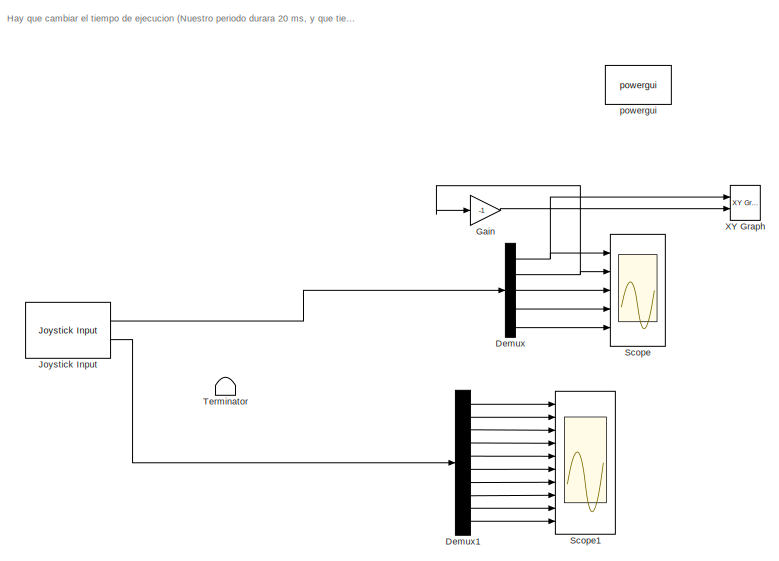
[diagram: root canvas - part 1/3, top left region]
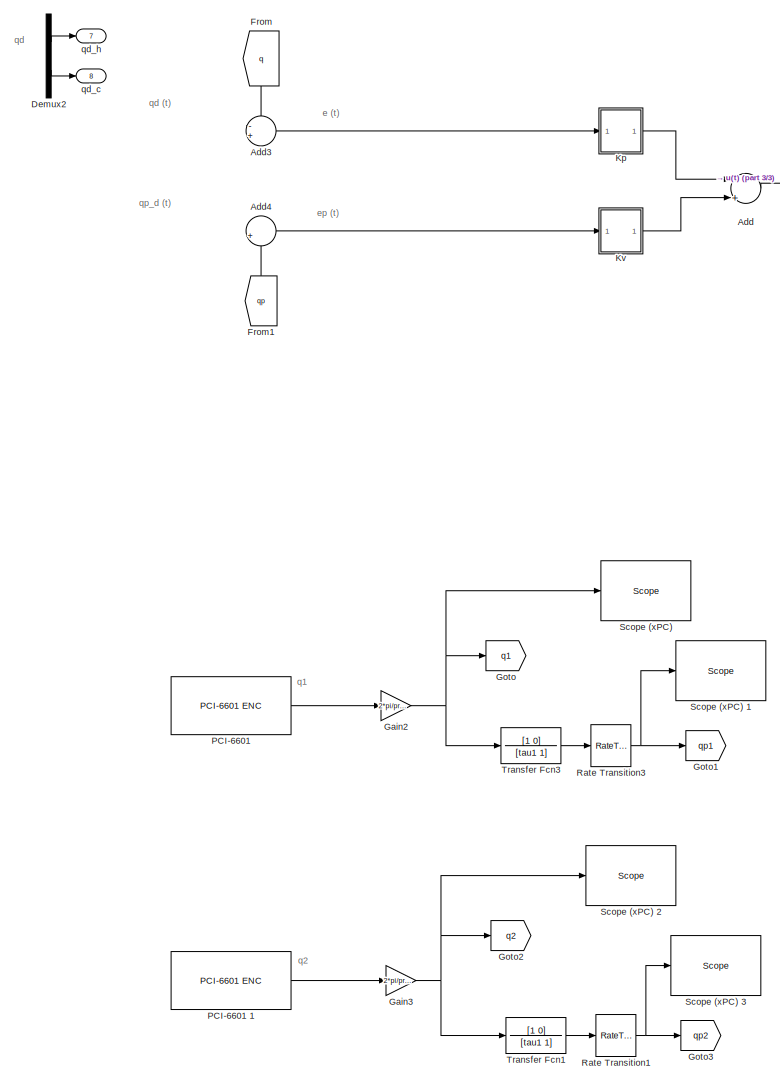
[diagram: root canvas - part 2/3, bottom left region]
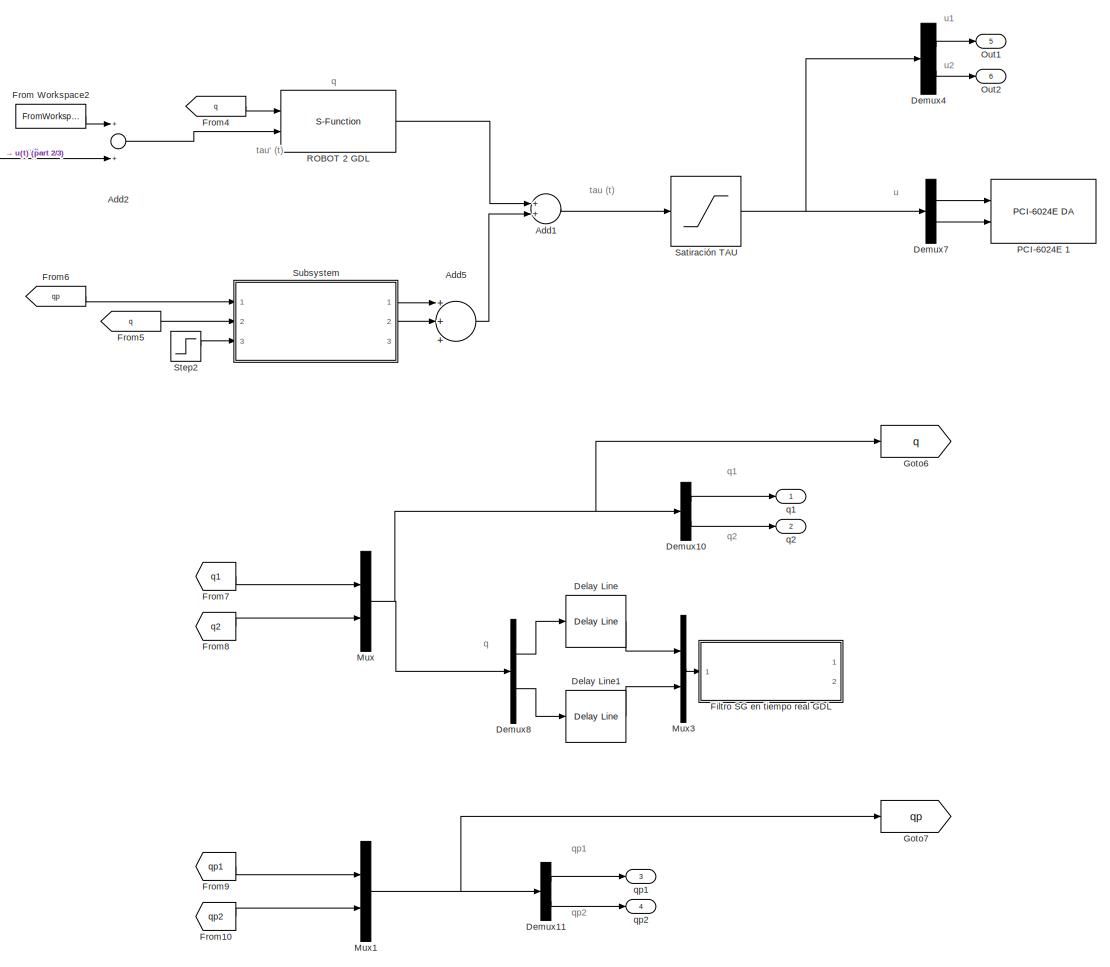
[diagram: root canvas - part 3/3, bottom right region]
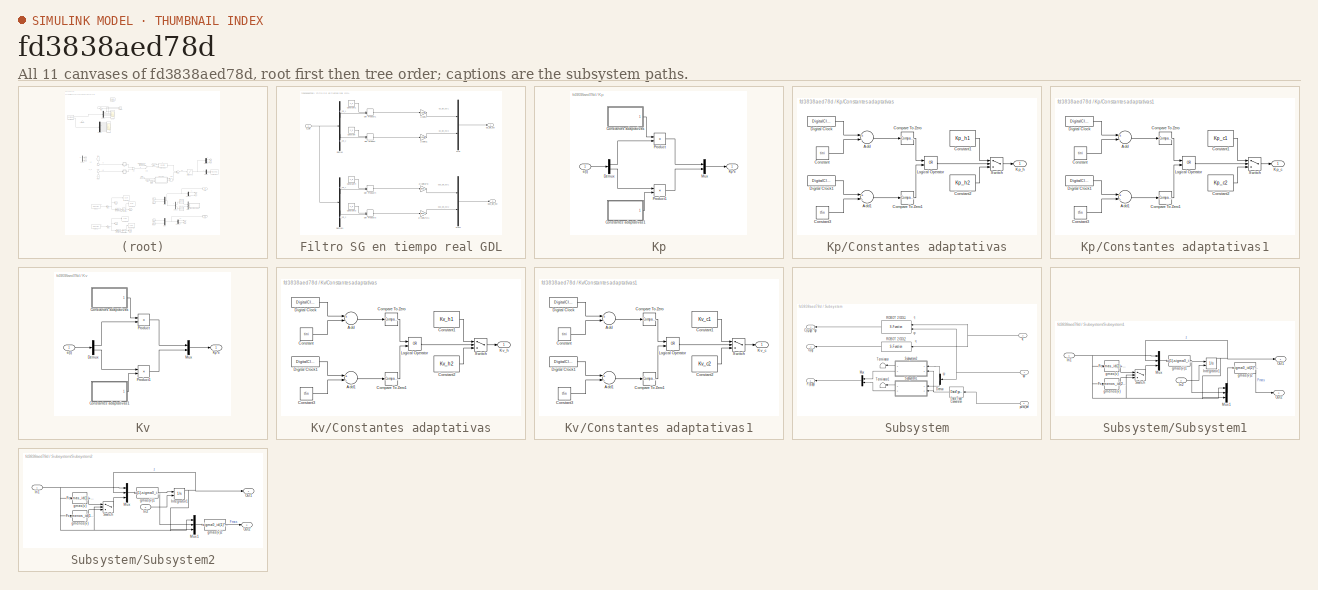
[diagram: thumbnail index - all 11 canvases of the model, root first then tree order]
MODEL slx_fd3838aed78d
KIND model
CONFIG AbsTol = auto
CONFIG EnableMultiTasking = on
CONFIG FixedStep = 0.001
CONFIG MaxStep = 1e-4
CONFIG MinStep = auto
CONFIG RelTol = 1e-3
CONFIG SampleTimeConstraint = Unconstrained
CONFIG Solver = FixedStepDiscrete
CONFIG SolverName = FixedStepDiscrete
CONFIG StartTime = 0.0
CONFIG StopTime = inf
BLOCK [Sum] Add
  InputSameDT = off
  OutDataTypeStr = Inherit: Inherit via internal rule
  Ports = [2, 1]
  SaturateOnIntegerOverflow = off
BLOCK [Sum] Add1
  InputSameDT = off
  OutDataTypeStr = Inherit: Inherit via internal rule
  Ports = [2, 1]
  SaturateOnIntegerOverflow = off
BLOCK [Sum] Add2
  InputSameDT = off
  OutDataTypeStr = Inherit: Inherit via internal rule
  Ports = [2, 1]
  SaturateOnIntegerOverflow = off
BLOCK [Sum] Add3
  IconShape = round
  InputSameDT = off
  Inputs = -+|
  OutDataTypeStr = Inherit: Inherit via internal rule
  Ports = [2, 1]
  SaturateOnIntegerOverflow = off
BLOCK [Sum] Add4
  Commented = on
  IconShape = round
  InputSameDT = off
  Inputs = |+-
  OutDataTypeStr = Inherit: Inherit via internal rule
  Ports = [2, 1]
  SaturateOnIntegerOverflow = off
BLOCK [Sum] Add5
  InputSameDT = off
  Inputs = +++
  OutDataTypeStr = Inherit: Inherit via internal rule
  Ports = [3, 1]
  SaturateOnIntegerOverflow = off
BLOCK [Reference] Delay Line  REF=dspbuff3/Delay Line
  Ports = [1, 1]
  SourceBlock = dspbuff3/Delay Line
  SourceProductBaseCode = DS
  SourceProductName = DSP System Toolbox
  SourceType = Delay Line
BLOCK [Reference] Delay Line1  REF=dspbuff3/Delay Line
  Ports = [1, 1]
  SourceBlock = dspbuff3/Delay Line
  SourceProductBaseCode = DS
  SourceProductName = DSP System Toolbox
  SourceType = Delay Line
BLOCK [Demux] Demux
  DisplayOption = bar
  Outputs = 5
  Ports = [1, 5]
BLOCK [Demux] Demux1
  DisplayOption = bar
  Outputs = 10
  Ports = [1, 10]
BLOCK [Demux] Demux10
  DisplayOption = bar
  Outputs = 2
  Ports = [1, 2]
BLOCK [Demux] Demux11
  DisplayOption = bar
  Outputs = 2
  Ports = [1, 2]
BLOCK [Demux] Demux2
  DisplayOption = bar
  Outputs = 2
  Ports = [1, 2]
BLOCK [Demux] Demux4
  DisplayOption = bar
  Outputs = 2
  Ports = [1, 2]
BLOCK [Demux] Demux7
  DisplayOption = bar
  Outputs = 2
  Ports = [1, 2]
BLOCK [Demux] Demux8
  DisplayOption = bar
  Outputs = 2
  Ports = [1, 2]
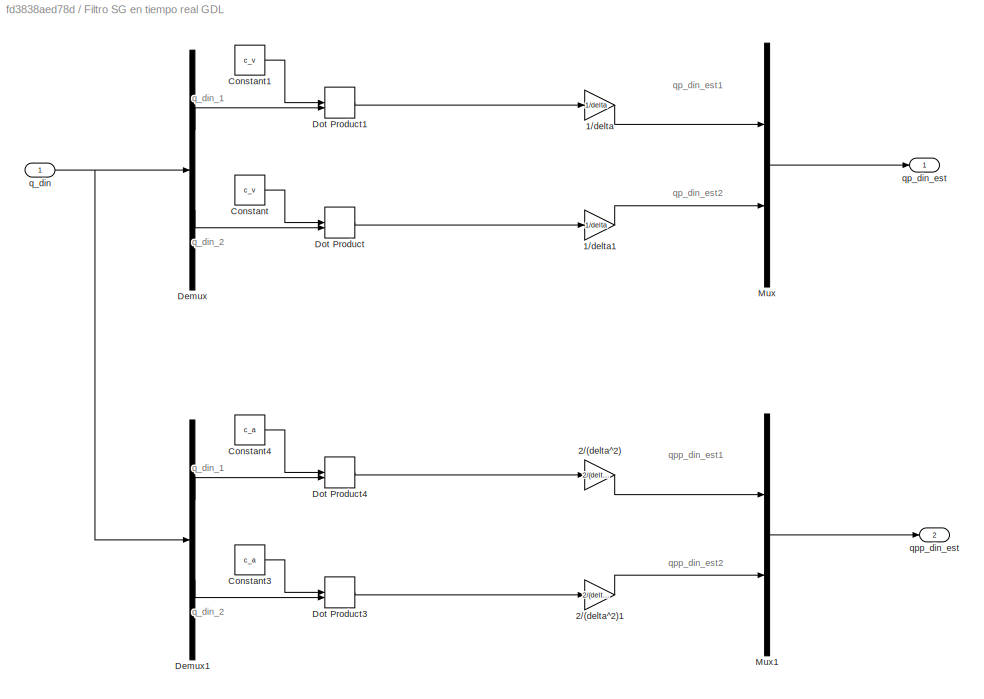
BLOCK [SubSystem] Filtro SG en tiempo real GDL
  Ports = [1, 2]
  RequestExecContextInheritance = off
  Variant = off
BLOCK [Gain] Filtro SG en tiempo real GDL/1//delta
  Gain = 1/delta
  OutDataTypeStr = Inherit: Inherit via internal rule
  ParamDataTypeStr = Inherit: Inherit via internal rule
  SampleTime = 0.001
  SaturateOnIntegerOverflow = off
BLOCK [Gain] Filtro SG en tiempo real GDL/1//delta1
  Gain = 1/delta
  OutDataTypeStr = Inherit: Inherit via internal rule
  ParamDataTypeStr = Inherit: Inherit via internal rule
  SampleTime = 0.001
  SaturateOnIntegerOverflow = off
BLOCK [Gain] Filtro SG en tiempo real GDL/2//(delta^2)
  Gain = 2/(delta*delta)
  OutDataTypeStr = Inherit: Inherit via internal rule
  ParamDataTypeStr = Inherit: Inherit via internal rule
  SampleTime = 0.001
  SaturateOnIntegerOverflow = off
BLOCK [Gain] Filtro SG en tiempo real GDL/2//(delta^2)1
  Gain = 2/(delta*delta)
  OutDataTypeStr = Inherit: Inherit via internal rule
  ParamDataTypeStr = Inherit: Inherit via internal rule
  SampleTime = 0.001
  SaturateOnIntegerOverflow = off
BLOCK [Constant] Filtro SG en tiempo real GDL/Constant
  SampleTime = 0.001
  Value = c_v
BLOCK [Constant] Filtro SG en tiempo real GDL/Constant1
  SampleTime = 0.001
  Value = c_v
BLOCK [Constant] Filtro SG en tiempo real GDL/Constant3
  SampleTime = 0.001
  Value = c_a
  VectorParams1D = off
BLOCK [Constant] Filtro SG en tiempo real GDL/Constant4
  SampleTime = 0.001
  Value = c_a
BLOCK [Demux] Filtro SG en tiempo real GDL/Demux
  DisplayOption = bar
  Outputs = 2
  Ports = [1, 2]
BLOCK [Demux] Filtro SG en tiempo real GDL/Demux1
  DisplayOption = bar
  Outputs = 2
  Ports = [1, 2]
BLOCK [DotProduct] Filtro SG en tiempo real GDL/Dot Product
  OutDataTypeStr = Inherit: Inherit via internal rule
BLOCK [DotProduct] Filtro SG en tiempo real GDL/Dot Product1
  OutDataTypeStr = Inherit: Inherit via internal rule
BLOCK [DotProduct] Filtro SG en tiempo real GDL/Dot Product3
  OutDataTypeStr = Inherit: Inherit via internal rule
BLOCK [DotProduct] Filtro SG en tiempo real GDL/Dot Product4
  OutDataTypeStr = Inherit: Inherit via internal rule
BLOCK [Mux] Filtro SG en tiempo real GDL/Mux
  DisplayOption = bar
  Inputs = 2
  Ports = [2, 1]
BLOCK [Mux] Filtro SG en tiempo real GDL/Mux1
  DisplayOption = bar
  Inputs = 2
  Ports = [2, 1]
BLOCK [Inport] Filtro SG en tiempo real GDL/q_din
  IconDisplay = Port number
  SampleTime = 0.001
BLOCK [Outport] Filtro SG en tiempo real GDL/qp_din_est
  IconDisplay = Port number
  SampleTime = 0.001
BLOCK [Outport] Filtro SG en tiempo real GDL/qpp_din_est
  IconDisplay = Port number
  Port = 2
  SampleTime = 0.001
BLOCK [From] From
  CloseFcn = tagdialog Close
  GotoTag = q
BLOCK [FromWorkspace] From Workspace2
  SampleTime = 0
  VariableName = [Td, qpp_d]
  ZeroCross = on
BLOCK [From] From1
  CloseFcn = tagdialog Close
  Commented = on
  GotoTag = qp
BLOCK [From] From10
  CloseFcn = tagdialog Close
  GotoTag = qp2
BLOCK [From] From4
  CloseFcn = tagdialog Close
  GotoTag = q
BLOCK [From] From5
  CloseFcn = tagdialog Close
  GotoTag = q
BLOCK [From] From6
  CloseFcn = tagdialog Close
  GotoTag = qp
BLOCK [From] From7
  CloseFcn = tagdialog Close
  GotoTag = q1
BLOCK [From] From8
  CloseFcn = tagdialog Close
  GotoTag = q2
BLOCK [From] From9
  CloseFcn = tagdialog Close
  GotoTag = qp1
BLOCK [Gain] Gain
  Gain = -1
  OutDataTypeStr = Inherit: Inherit via internal rule
  ParamDataTypeStr = Inherit: Inherit via internal rule
  SaturateOnIntegerOverflow = off
BLOCK [Gain] Gain2
  Gain = 2*pi/precision
  OutDataTypeStr = Inherit: Inherit via internal rule
  ParamDataTypeStr = Inherit: Inherit via internal rule
  SaturateOnIntegerOverflow = off
BLOCK [Gain] Gain3
  Gain = 2*pi/precision
  OutDataTypeStr = Inherit: Inherit via internal rule
  ParamDataTypeStr = Inherit: Inherit via internal rule
  SaturateOnIntegerOverflow = off
BLOCK [Goto] Goto
  GotoTag = q1
BLOCK [Goto] Goto1
  GotoTag = qp1
BLOCK [Goto] Goto2
  GotoTag = q2
BLOCK [Goto] Goto3
  GotoTag = qp2
BLOCK [Goto] Goto6
  GotoTag = q
BLOCK [Goto] Goto7
  GotoTag = qp
BLOCK [Reference] Joystick Input  REF=vrlib/Joystick Input
  Ports = [0, 2]
  SourceBlock = vrlib/Joystick Input
  SourceProductBaseCode = VR
  SourceProductName = Simulink 3D Animation
  SourceType = Joystick Input
BLOCK [SubSystem] Kp
  Ports = [1, 1]
  RequestExecContextInheritance = off
  Variant = off
BLOCK [SubSystem] Kp/Constantes adaptativas
  Ports = [0, 1]
  RequestExecContextInheritance = off
  Variant = off
BLOCK [Sum] Kp/Constantes adaptativas/Add
  InputSameDT = off
  Inputs = +-
  OutDataTypeStr = Inherit: Inherit via internal rule
  Ports = [2, 1]
  SaturateOnIntegerOverflow = off
BLOCK [Sum] Kp/Constantes adaptativas/Add1
  InputSameDT = off
  Inputs = +-
  OutDataTypeStr = Inherit: Inherit via internal rule
  Ports = [2, 1]
  SaturateOnIntegerOverflow = off
BLOCK [Reference] Kp/Constantes adaptativas/Compare To Zero  REF=simulink/Logic and Bit
Operations/Compare
To Zero
  Ports = [1, 1]
  SourceBlock = simulink/Logic and Bit\nOperations/Compare\nTo Zero
  SourceProductBaseCode = SL
  SourceProductName = Simulink
  SourceType = Compare To Zero
BLOCK [Reference] Kp/Constantes adaptativas/Compare To Zero1  REF=simulink/Logic and Bit
Operations/Compare
To Zero
  Ports = [1, 1]
  SourceBlock = simulink/Logic and Bit\nOperations/Compare\nTo Zero
  SourceProductBaseCode = SL
  SourceProductName = Simulink
  SourceType = Compare To Zero
BLOCK [Constant] Kp/Constantes adaptativas/Constant
  Value = tini
BLOCK [Constant] Kp/Constantes adaptativas/Constant1
  Value = Kp_h1
BLOCK [Constant] Kp/Constantes adaptativas/Constant2
  Value = Kp_h2
BLOCK [Constant] Kp/Constantes adaptativas/Constant3
  Value = tfin
BLOCK [DigitalClock] Kp/Constantes adaptativas/Digital Clock
  SampleTime = 0.001
BLOCK [DigitalClock] Kp/Constantes adaptativas/Digital Clock1
  SampleTime = 0.001
BLOCK [Outport] Kp/Constantes adaptativas/Kp_h
  IconDisplay = Port number
BLOCK [Logic] Kp/Constantes adaptativas/Logical Operator
  AllPortsSameDT = off
  Operator = OR
  OutDataTypeStr = boolean
  Ports = [2, 1]
BLOCK [Switch] Kp/Constantes adaptativas/Switch
  Criteria = u2 ~= 0
  InputSameDT = off
  SaturateOnIntegerOverflow = off
BLOCK [SubSystem] Kp/Constantes adaptativas1
  Ports = [0, 1]
  RequestExecContextInheritance = off
  Variant = off
BLOCK [Sum] Kp/Constantes adaptativas1/Add
  InputSameDT = off
  Inputs = +-
  OutDataTypeStr = Inherit: Inherit via internal rule
  Ports = [2, 1]
  SaturateOnIntegerOverflow = off
BLOCK [Sum] Kp/Constantes adaptativas1/Add1
  InputSameDT = off
  Inputs = +-
  OutDataTypeStr = Inherit: Inherit via internal rule
  Ports = [2, 1]
  SaturateOnIntegerOverflow = off
BLOCK [Reference] Kp/Constantes adaptativas1/Compare To Zero  REF=simulink/Logic and Bit
Operations/Compare
To Zero
  Ports = [1, 1]
  SourceBlock = simulink/Logic and Bit\nOperations/Compare\nTo Zero
  SourceProductBaseCode = SL
  SourceProductName = Simulink
  SourceType = Compare To Zero
BLOCK [Reference] Kp/Constantes adaptativas1/Compare To Zero1  REF=simulink/Logic and Bit
Operations/Compare
To Zero
  Ports = [1, 1]
  SourceBlock = simulink/Logic and Bit\nOperations/Compare\nTo Zero
  SourceProductBaseCode = SL
  SourceProductName = Simulink
  SourceType = Compare To Zero
BLOCK [Constant] Kp/Constantes adaptativas1/Constant
  Value = tini
BLOCK [Constant] Kp/Constantes adaptativas1/Constant1
  Value = Kp_c1
BLOCK [Constant] Kp/Constantes adaptativas1/Constant2
  Value = Kp_c2
BLOCK [Constant] Kp/Constantes adaptativas1/Constant3
  Value = tfin
BLOCK [DigitalClock] Kp/Constantes adaptativas1/Digital Clock
  SampleTime = 0.001
BLOCK [DigitalClock] Kp/Constantes adaptativas1/Digital Clock1
  SampleTime = 0.001
BLOCK [Outport] Kp/Constantes adaptativas1/Kp_c
  IconDisplay = Port number
BLOCK [Logic] Kp/Constantes adaptativas1/Logical Operator
  AllPortsSameDT = off
  Operator = OR
  OutDataTypeStr = boolean
  Ports = [2, 1]
BLOCK [Switch] Kp/Constantes adaptativas1/Switch
  Criteria = u2 ~= 0
  InputSameDT = off
  SaturateOnIntegerOverflow = off
BLOCK [Demux] Kp/Demux
  DisplayOption = bar
  Outputs = 2
  Ports = [1, 2]
BLOCK [Outport] Kp/Kp*e
  IconDisplay = Port number
BLOCK [Mux] Kp/Mux
  DisplayOption = bar
  Inputs = 2
  Ports = [2, 1]
BLOCK [Product] Kp/Product
  InputSameDT = off
  OutDataTypeStr = Inherit: Inherit via internal rule
  Ports = [2, 1]
  SaturateOnIntegerOverflow = off
BLOCK [Product] Kp/Product1
  InputSameDT = off
  OutDataTypeStr = Inherit: Inherit via internal rule
  Ports = [2, 1]
  SaturateOnIntegerOverflow = off
BLOCK [Inport] Kp/e(t)
  IconDisplay = Port number
BLOCK [SubSystem] Kv
  Ports = [1, 1]
  RequestExecContextInheritance = off
  Variant = off
BLOCK [SubSystem] Kv/Constantes adaptativas
  Ports = [0, 1]
  RequestExecContextInheritance = off
  Variant = off
BLOCK [Sum] Kv/Constantes adaptativas/Add
  InputSameDT = off
  Inputs = +-
  OutDataTypeStr = Inherit: Inherit via internal rule
  Ports = [2, 1]
  SaturateOnIntegerOverflow = off
BLOCK [Sum] Kv/Constantes adaptativas/Add1
  InputSameDT = off
  Inputs = +-
  OutDataTypeStr = Inherit: Inherit via internal rule
  Ports = [2, 1]
  SaturateOnIntegerOverflow = off
BLOCK [Reference] Kv/Constantes adaptativas/Compare To Zero  REF=simulink/Logic and Bit
Operations/Compare
To Zero
  Ports = [1, 1]
  SourceBlock = simulink/Logic and Bit\nOperations/Compare\nTo Zero
  SourceProductBaseCode = SL
  SourceProductName = Simulink
  SourceType = Compare To Zero
BLOCK [Reference] Kv/Constantes adaptativas/Compare To Zero1  REF=simulink/Logic and Bit
Operations/Compare
To Zero
  Ports = [1, 1]
  SourceBlock = simulink/Logic and Bit\nOperations/Compare\nTo Zero
  SourceProductBaseCode = SL
  SourceProductName = Simulink
  SourceType = Compare To Zero
BLOCK [Constant] Kv/Constantes adaptativas/Constant
  Value = tini
BLOCK [Constant] Kv/Constantes adaptativas/Constant1
  Value = Kv_h1
BLOCK [Constant] Kv/Constantes adaptativas/Constant2
  Value = Kv_h2
BLOCK [Constant] Kv/Constantes adaptativas/Constant3
  Value = tfin
BLOCK [DigitalClock] Kv/Constantes adaptativas/Digital Clock
  SampleTime = 0.001
BLOCK [DigitalClock] Kv/Constantes adaptativas/Digital Clock1
  SampleTime = 0.001
BLOCK [Outport] Kv/Constantes adaptativas/Kv_h
  IconDisplay = Port number
BLOCK [Logic] Kv/Constantes adaptativas/Logical Operator
  AllPortsSameDT = off
  Operator = OR
  OutDataTypeStr = boolean
  Ports = [2, 1]
BLOCK [Switch] Kv/Constantes adaptativas/Switch
  Criteria = u2 ~= 0
  InputSameDT = off
  SaturateOnIntegerOverflow = off
BLOCK [SubSystem] Kv/Constantes adaptativas1
  Ports = [0, 1]
  RequestExecContextInheritance = off
  Variant = off
BLOCK [Sum] Kv/Constantes adaptativas1/Add
  InputSameDT = off
  Inputs = +-
  OutDataTypeStr = Inherit: Inherit via internal rule
  Ports = [2, 1]
  SaturateOnIntegerOverflow = off
BLOCK [Sum] Kv/Constantes adaptativas1/Add1
  InputSameDT = off
  Inputs = +-
  OutDataTypeStr = Inherit: Inherit via internal rule
  Ports = [2, 1]
  SaturateOnIntegerOverflow = off
BLOCK [Reference] Kv/Constantes adaptativas1/Compare To Zero  REF=simulink/Logic and Bit
Operations/Compare
To Zero
  Ports = [1, 1]
  SourceBlock = simulink/Logic and Bit\nOperations/Compare\nTo Zero
  SourceProductBaseCode = SL
  SourceProductName = Simulink
  SourceType = Compare To Zero
BLOCK [Reference] Kv/Constantes adaptativas1/Compare To Zero1  REF=simulink/Logic and Bit
Operations/Compare
To Zero
  Ports = [1, 1]
  SourceBlock = simulink/Logic and Bit\nOperations/Compare\nTo Zero
  SourceProductBaseCode = SL
  SourceProductName = Simulink
  SourceType = Compare To Zero
BLOCK [Constant] Kv/Constantes adaptativas1/Constant
  Value = tini
BLOCK [Constant] Kv/Constantes adaptativas1/Constant1
  Value = Kv_c1
BLOCK [Constant] Kv/Constantes adaptativas1/Constant2
  Value = Kv_c2
BLOCK [Constant] Kv/Constantes adaptativas1/Constant3
  Value = tfin
BLOCK [DigitalClock] Kv/Constantes adaptativas1/Digital Clock
  SampleTime = 0.001
BLOCK [DigitalClock] Kv/Constantes adaptativas1/Digital Clock1
  SampleTime = 0.001
BLOCK [Outport] Kv/Constantes adaptativas1/Kv_c
  IconDisplay = Port number
BLOCK [Logic] Kv/Constantes adaptativas1/Logical Operator
  AllPortsSameDT = off
  Operator = OR
  OutDataTypeStr = boolean
  Ports = [2, 1]
BLOCK [Switch] Kv/Constantes adaptativas1/Switch
  Criteria = u2 ~= 0
  InputSameDT = off
  SaturateOnIntegerOverflow = off
BLOCK [Demux] Kv/Demux
  DisplayOption = bar
  Outputs = 2
  Ports = [1, 2]
BLOCK [Outport] Kv/Kp*e
  IconDisplay = Port number
BLOCK [Mux] Kv/Mux
  DisplayOption = bar
  Inputs = 2
  Ports = [2, 1]
BLOCK [Product] Kv/Product
  InputSameDT = off
  OutDataTypeStr = Inherit: Inherit via internal rule
  Ports = [2, 1]
  SaturateOnIntegerOverflow = off
BLOCK [Product] Kv/Product1
  InputSameDT = off
  OutDataTypeStr = Inherit: Inherit via internal rule
  Ports = [2, 1]
  SaturateOnIntegerOverflow = off
BLOCK [Inport] Kv/e(t)
  IconDisplay = Port number
BLOCK [Mux] Mux
  DisplayOption = bar
  Inputs = 2
  Ports = [2, 1]
BLOCK [Mux] Mux1
  DisplayOption = bar
  Inputs = 2
  Ports = [2, 1]
BLOCK [Mux] Mux3
  DisplayOption = bar
  Inputs = 2
  Ports = [2, 1]
BLOCK [Outport] Out1
  IconDisplay = Port number
  Port = 5
BLOCK [Outport] Out2
  IconDisplay = Port number
  Port = 6
BLOCK [Reference] PCI-6024E 1  REF=xpcnilib/D//A/E Series/PCI-6024E DA
  Ports = [2]
  SourceBlock = xpcnilib/D//A/E Series/PCI-6024E DA
  SourceProductBaseCode = XP
  SourceProductName = Simulink Real-Time
  SourceType = danipci6024e
BLOCK [Reference] PCI-6601   REF=xpcnilib/Incremental
Encoder/PCI-6601 ENC
  Ports = [0, 1]
  SourceBlock = xpcnilib/Incremental\nEncoder/PCI-6601 ENC
  SourceProductBaseCode = XP
  SourceProductName = Simulink Real-Time
  SourceType = encnipci6601
BLOCK [Reference] PCI-6601 1  REF=xpcnilib/Incremental
Encoder/PCI-6601 ENC
  Ports = [0, 1]
  SourceBlock = xpcnilib/Incremental\nEncoder/PCI-6601 ENC
  SourceProductBaseCode = XP
  SourceProductName = Simulink Real-Time
  SourceType = encnipci6601
BLOCK [S-Function] ROBOT 2 GDL
  EnableBusSupport = off
  FunctionName = r2gdl_M_param
  Parameters = k_id
  Ports = [2, 1]
  SFcnIsStateOwnerBlock = off
  SFunctionDeploymentMode = off
BLOCK [RateTransition] Rate Transition1
  OutPortSampleTime = 0.001
BLOCK [RateTransition] Rate Transition3
  OutPortSampleTime = 0.001
BLOCK [Saturate] Satiración TAU
  InputPortMap = u0
  LowerLimit = -10
  Ports = [1, 1]
  SampleTime = 0.001
  UpperLimit = 10
BLOCK [Scope] Scope
  NumInputPorts = 5
  Ports = [5]
  ScopeSpecificationString = Simulink.scopes.TimeScopeBlockCfg('CurrentConfiguration', extmgr.ConfigurationSet(extmgr.Configuration('Core','General UI',true,'DisplayFullSourceName',true),extmgr.Configuration('Core','Source UI',true),extmgr.Configuration('Sources','WiredSimulink',true,'SampleTime','0.001'),extmgr.Configuration('Visuals','Time Domain',true,'SerializedDisplays',{struct('MinYLimReal','-1.00000','MaxYLimReal','1.0...<+1444ch>
BLOCK [Reference] Scope (xPC)   REF=slrtlib/Displays and
Logging/Scope 
  Ports = [1]
  SourceBlock = slrtlib/Displays and\nLogging/Scope
  SourceProductBaseCode = XP
  SourceProductName = Simulink Real-Time
  SourceType = xpcscopeblock
BLOCK [Reference] Scope (xPC) 1  REF=slrtlib/Displays and
Logging/Scope 
  Ports = [1]
  SourceBlock = slrtlib/Displays and\nLogging/Scope
  SourceProductBaseCode = XP
  SourceProductName = Simulink Real-Time
  SourceType = xpcscopeblock
BLOCK [Reference] Scope (xPC) 2  REF=slrtlib/Displays and
Logging/Scope 
  Ports = [1]
  SourceBlock = slrtlib/Displays and\nLogging/Scope
  SourceProductBaseCode = XP
  SourceProductName = Simulink Real-Time
  SourceType = xpcscopeblock
BLOCK [Reference] Scope (xPC) 3  REF=slrtlib/Displays and
Logging/Scope 
  Ports = [1]
  SourceBlock = slrtlib/Displays and\nLogging/Scope
  SourceProductBaseCode = XP
  SourceProductName = Simulink Real-Time
  SourceType = xpcscopeblock
BLOCK [Scope] Scope1
  NumInputPorts = 10
  Ports = [10]
  ScopeSpecificationString = Simulink.scopes.TimeScopeBlockCfg('CurrentConfiguration', extmgr.ConfigurationSet(extmgr.Configuration('Core','General UI',true,'DisplayFullSourceName',true),extmgr.Configuration('Core','Source UI',true),extmgr.Configuration('Sources','WiredSimulink',true,'SampleTime','0.001','DataLoggingVariableName','ScopeData1'),extmgr.Configuration('Visuals','Time Domain',true,'SerializedDisplays',{struct('Min...<+1545ch>
BLOCK [Step] Step2
  SampleTime = 0.001
  Time = 0
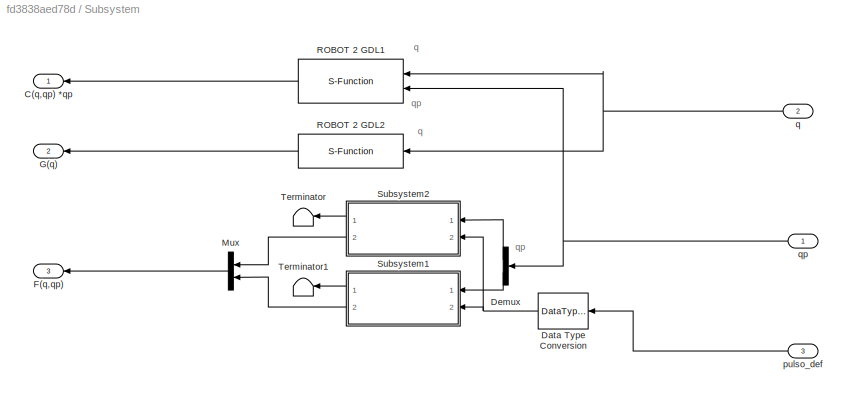
BLOCK [SubSystem] Subsystem
  Ports = [3, 3]
  RequestExecContextInheritance = off
  Variant = off
BLOCK [Outport] Subsystem/C(q,qp) *qp
  IconDisplay = Port number
BLOCK [DataTypeConversion] Subsystem/Data Type Conversion
  OutDataTypeStr = boolean
  RndMeth = Floor
  SaturateOnIntegerOverflow = off
BLOCK [Demux] Subsystem/Demux
  DisplayOption = bar
  Outputs = 2
  Ports = [1, 2]
BLOCK [Outport] Subsystem/F(q,qp)
  IconDisplay = Port number
  Port = 3
BLOCK [Outport] Subsystem/G(q)
  IconDisplay = Port number
  Port = 2
BLOCK [Mux] Subsystem/Mux
  DisplayOption = bar
  Inputs = 2
  Ports = [2, 1]
BLOCK [S-Function] Subsystem/ROBOT 2 GDL1
  EnableBusSupport = off
  FunctionName = r2gdl_Cqp_param
  Parameters = k_id
  Ports = [2, 1]
  SFcnIsStateOwnerBlock = off
  SFunctionDeploymentMode = off
BLOCK [S-Function] Subsystem/ROBOT 2 GDL2
  EnableBusSupport = off
  FunctionName = r2gdl_G_param
  Parameters = k_id
  Ports = [1, 1]
  SFcnIsStateOwnerBlock = off
  SFunctionDeploymentMode = off
BLOCK [SubSystem] Subsystem/Subsystem1
  Ports = [2, 2]
  RequestExecContextInheritance = off
  Variant = off
BLOCK [Inport] Subsystem/Subsystem1/In1
  IconDisplay = Port number
BLOCK [Inport] Subsystem/Subsystem1/In2
  IconDisplay = Port number
  Port = 2
BLOCK [Integrator] Subsystem/Subsystem1/Integrator1
  ExternalReset = rising
  Ports = [2, 1]
BLOCK [Mux] Subsystem/Subsystem1/Mux
  DisplayOption = bar
  Inputs = 3
  Ports = [3, 1]
BLOCK [Mux] Subsystem/Subsystem1/Mux1
  DisplayOption = bar
  Inputs = 3
  Ports = [3, 1]
BLOCK [Outport] Subsystem/Subsystem1/Out1
  IconDisplay = Port number
BLOCK [Outport] Subsystem/Subsystem1/Out2
  IconDisplay = Port number
  Port = 2
BLOCK [Switch] Subsystem/Subsystem1/Switch
  Criteria = u2 > Threshold
  InputSameDT = off
  SaturateOnIntegerOverflow = off
BLOCK [Fcn] Subsystem/Subsystem1/gmas(v)
  Expr = Fc_mas_id(2)+(Fs_mas_id(2)-Fc_mas_id(2))*exp(-(u(1)/vs_id(2))^2)
BLOCK [Fcn] Subsystem/Subsystem1/gmas(v)1
  Expr = u(1)-sigma0_id(2)*u(2)*abs(u(1))/u(3)
BLOCK [Fcn] Subsystem/Subsystem1/gmas(v)2
  Expr = sigma0_id(2)*u(3)+sigma1_id(2)*u(2)+sigma2_id(2)*u(1)
BLOCK [Fcn] Subsystem/Subsystem1/gmenos(v)
  Expr = Fc_menos_id(2)+(Fs_menos_id(2)-Fc_menos_id(2))*exp(-(u(1)/vs_id(2))^2)
BLOCK [SubSystem] Subsystem/Subsystem2
  Ports = [2, 2]
  RequestExecContextInheritance = off
  Variant = off
BLOCK [Inport] Subsystem/Subsystem2/In1
  IconDisplay = Port number
BLOCK [Inport] Subsystem/Subsystem2/In2
  IconDisplay = Port number
  Port = 2
BLOCK [Integrator] Subsystem/Subsystem2/Integrator1
  ExternalReset = rising
  Ports = [2, 1]
BLOCK [Mux] Subsystem/Subsystem2/Mux
  DisplayOption = bar
  Inputs = 3
  Ports = [3, 1]
BLOCK [Mux] Subsystem/Subsystem2/Mux1
  DisplayOption = bar
  Inputs = 3
  Ports = [3, 1]
BLOCK [Outport] Subsystem/Subsystem2/Out1
  IconDisplay = Port number
BLOCK [Outport] Subsystem/Subsystem2/Out2
  IconDisplay = Port number
  Port = 2
BLOCK [Switch] Subsystem/Subsystem2/Switch
  Criteria = u2 > Threshold
  InputSameDT = off
  SaturateOnIntegerOverflow = off
BLOCK [Fcn] Subsystem/Subsystem2/gmas(v)
  Expr = Fc_mas_id(1)+(Fs_mas_id(1)-Fc_mas_id(1))*exp(-(u(1)/vs_id(1))^2)
BLOCK [Fcn] Subsystem/Subsystem2/gmas(v)1
  Expr = u(1)-sigma0_id(1)*u(2)*abs(u(1))/u(3)
BLOCK [Fcn] Subsystem/Subsystem2/gmas(v)2
  Expr = sigma0_id(1)*u(3)+sigma1_id(1)*u(2)+sigma2_id(1)*u(1)
BLOCK [Fcn] Subsystem/Subsystem2/gmenos(v)
  Expr = Fc_menos_id(1)+(Fs_menos_id(1)-Fc_menos_id(1))*exp(-(u(1)/vs_id(1))^2)
BLOCK [Terminator] Subsystem/Terminator
BLOCK [Terminator] Subsystem/Terminator1
BLOCK [Inport] Subsystem/pulso_def
  IconDisplay = Port number
  Port = 3
BLOCK [Inport] Subsystem/q
  IconDisplay = Port number
  Port = 2
BLOCK [Inport] Subsystem/qp
  IconDisplay = Port number
BLOCK [Terminator] Terminator
BLOCK [TransferFcn] Transfer Fcn1
  Denominator = [tau1 1]
  Numerator = [1 0]
BLOCK [TransferFcn] Transfer Fcn3
  Denominator = [tau1 1]
  Numerator = [1 0]
BLOCK [Reference] XY Graph  REF=simulink/Sinks/XY Graph
  Ports = [2]
  SourceBlock = simulink/Sinks/XY Graph
  SourceProductBaseCode = SL
  SourceProductName = Simulink
  SourceType = XY scope.
BLOCK [Reference] powergui  REF=powerlib/powergui
  Ports = []
  Priority = 1
  SourceBlock = powerlib/powergui
  SourceProductBaseCode = PS
  SourceProductName = Simscape Power Systems
  SourceType = PSB option menu block
BLOCK [Outport] q1
  IconDisplay = Port number
BLOCK [Outport] q2
  IconDisplay = Port number
  Port = 2
BLOCK [Outport] qd_c
  IconDisplay = Port number
  Port = 8
BLOCK [Outport] qd_h
  IconDisplay = Port number
  Port = 7
BLOCK [Outport] qp1
  IconDisplay = Port number
  Port = 3
BLOCK [Outport] qp2
  IconDisplay = Port number
  Port = 4
ANNOTATION (root): Hay que cambiar el tiempo de ejecucion (Nuestro periodo durara 20 ms, y que tiene frecuencia 50Hz, y tambien el numero de puntos que tomamos para el gráfico para que salga bien definida.
ANNOTATION (root): e (t)
ANNOTATION (root): ep (t)
ANNOTATION (root): q
ANNOTATION (root): q1
ANNOTATION (root): q2
ANNOTATION (root): qd
ANNOTATION (root): qd (t)
ANNOTATION (root): qp1
ANNOTATION (root): qp2
ANNOTATION (root): qp_d (t)
ANNOTATION (root): tau (t)
ANNOTATION (root): tau' (t)
ANNOTATION (root): u
ANNOTATION (root): u1
ANNOTATION (root): u2
ANNOTATION Filtro SG en tiempo real GDL: q_din_1
ANNOTATION Filtro SG en tiempo real GDL: q_din_2
ANNOTATION Filtro SG en tiempo real GDL: qp_din_est1
ANNOTATION Filtro SG en tiempo real GDL: qp_din_est2
ANNOTATION Filtro SG en tiempo real GDL: qpp_din_est1
ANNOTATION Filtro SG en tiempo real GDL: qpp_din_est2
ANNOTATION Subsystem: q
ANNOTATION Subsystem: qp
LINE Add1:1 -> Satiración TAU:1
LINE Add2:1 -> ROBOT 2 GDL:2
LINE Add3:1 -> Kp:1
LINE Add4:1 -> Kv:1
LINE Add5:1 -> Add1:2
LINE Add:1 -> Add2:2
LINE Delay Line1:1 -> Mux3:2
LINE Delay Line:1 -> Mux3:1
LINE Demux10:1 -> q1:1
LINE Demux10:2 -> q2:1
LINE Demux11:1 -> qp1:1
LINE Demux11:2 -> qp2:1
LINE Demux1:1 -> Scope1:1
LINE Demux1:10 -> Scope1:10
LINE Demux1:2 -> Scope1:2
LINE Demux1:3 -> Scope1:3
LINE Demux1:4 -> Scope1:4
LINE Demux1:5 -> Scope1:5
LINE Demux1:6 -> Scope1:6
LINE Demux1:7 -> Scope1:7
LINE Demux1:8 -> Scope1:8
LINE Demux1:9 -> Scope1:9
LINE Demux2:1 -> qd_h:1
LINE Demux2:2 -> qd_c:1
LINE Demux4:1 -> Out1:1
LINE Demux4:2 -> Out2:1
LINE Demux7:1 -> PCI-6024E 1:1
LINE Demux7:2 -> PCI-6024E 1:2
LINE Demux8:1 -> Delay Line:1
LINE Demux8:2 -> Delay Line1:1
NET Demux:1 -> Scope:1, XY Graph:1
NET Demux:2 -> Gain:1, Scope:2
LINE Demux:3 -> Scope:3
LINE Demux:4 -> Scope:4
LINE Demux:5 -> Scope:5
LINE Filtro SG en tiempo real GDL/1//delta1:1 -> Filtro SG en tiempo real GDL/Mux:2
LINE Filtro SG en tiempo real GDL/1//delta:1 -> Filtro SG en tiempo real GDL/Mux:1
LINE Filtro SG en tiempo real GDL/2//(delta^2)1:1 -> Filtro SG en tiempo real GDL/Mux1:2
LINE Filtro SG en tiempo real GDL/2//(delta^2):1 -> Filtro SG en tiempo real GDL/Mux1:1
LINE Filtro SG en tiempo real GDL/Constant1:1 -> Filtro SG en tiempo real GDL/Dot Product1:1
LINE Filtro SG en tiempo real GDL/Constant3:1 -> Filtro SG en tiempo real GDL/Dot Product3:1
LINE Filtro SG en tiempo real GDL/Constant4:1 -> Filtro SG en tiempo real GDL/Dot Product4:1
LINE Filtro SG en tiempo real GDL/Constant:1 -> Filtro SG en tiempo real GDL/Dot Product:1
LINE Filtro SG en tiempo real GDL/Demux1:1 -> Filtro SG en tiempo real GDL/Dot Product4:2
LINE Filtro SG en tiempo real GDL/Demux1:2 -> Filtro SG en tiempo real GDL/Dot Product3:2
LINE Filtro SG en tiempo real GDL/Demux:1 -> Filtro SG en tiempo real GDL/Dot Product1:2
LINE Filtro SG en tiempo real GDL/Demux:2 -> Filtro SG en tiempo real GDL/Dot Product:2
LINE Filtro SG en tiempo real GDL/Dot Product1:1 -> Filtro SG en tiempo real GDL/1//delta:1
LINE Filtro SG en tiempo real GDL/Dot Product3:1 -> Filtro SG en tiempo real GDL/2//(delta^2)1:1
LINE Filtro SG en tiempo real GDL/Dot Product4:1 -> Filtro SG en tiempo real GDL/2//(delta^2):1
LINE Filtro SG en tiempo real GDL/Dot Product:1 -> Filtro SG en tiempo real GDL/1//delta1:1
LINE Filtro SG en tiempo real GDL/Mux1:1 -> Filtro SG en tiempo real GDL/qpp_din_est:1
LINE Filtro SG en tiempo real GDL/Mux:1 -> Filtro SG en tiempo real GDL/qp_din_est:1
NET Filtro SG en tiempo real GDL/q_din:1 -> Filtro SG en tiempo real GDL/Demux1:1, Filtro SG en tiempo real GDL/Demux:1
LINE From Workspace2:1 -> Add2:1
LINE From10:1 -> Mux1:2
LINE From1:1 -> Add4:2
LINE From4:1 -> ROBOT 2 GDL:1
LINE From5:1 -> Subsystem:2
LINE From6:1 -> Subsystem:1
LINE From7:1 -> Mux:1
LINE From8:1 -> Mux:2
LINE From9:1 -> Mux1:1
LINE From:1 -> Add3:1
NET Gain2:1 -> Goto:1, Scope (xPC) :1, Transfer Fcn3:1
NET Gain3:1 -> Goto2:1, Scope (xPC) 2:1, Transfer Fcn1:1
LINE Gain:1 -> XY Graph:2
LINE Joystick Input:1 -> Demux:1
LINE Joystick Input:2 -> Demux1:1
LINE Kp/Constantes adaptativas/Add1:1 -> Kp/Constantes adaptativas/Compare To Zero1:1
LINE Kp/Constantes adaptativas/Add:1 -> Kp/Constantes adaptativas/Compare To Zero:1
LINE Kp/Constantes adaptativas/Compare To Zero1:1 -> Kp/Constantes adaptativas/Logical Operator:2
LINE Kp/Constantes adaptativas/Compare To Zero:1 -> Kp/Constantes adaptativas/Logical Operator:1
LINE Kp/Constantes adaptativas/Constant1:1 -> Kp/Constantes adaptativas/Switch:1
LINE Kp/Constantes adaptativas/Constant2:1 -> Kp/Constantes adaptativas/Switch:3
LINE Kp/Constantes adaptativas/Constant3:1 -> Kp/Constantes adaptativas/Add1:2
LINE Kp/Constantes adaptativas/Constant:1 -> Kp/Constantes adaptativas/Add:2
LINE Kp/Constantes adaptativas/Digital Clock1:1 -> Kp/Constantes adaptativas/Add1:1
LINE Kp/Constantes adaptativas/Digital Clock:1 -> Kp/Constantes adaptativas/Add:1
LINE Kp/Constantes adaptativas/Logical Operator:1 -> Kp/Constantes adaptativas/Switch:2
LINE Kp/Constantes adaptativas/Switch:1 -> Kp/Constantes adaptativas/Kp_h:1
LINE Kp/Constantes adaptativas1/Add1:1 -> Kp/Constantes adaptativas1/Compare To Zero1:1
LINE Kp/Constantes adaptativas1/Add:1 -> Kp/Constantes adaptativas1/Compare To Zero:1
LINE Kp/Constantes adaptativas1/Compare To Zero1:1 -> Kp/Constantes adaptativas1/Logical Operator:2
LINE Kp/Constantes adaptativas1/Compare To Zero:1 -> Kp/Constantes adaptativas1/Logical Operator:1
LINE Kp/Constantes adaptativas1/Constant1:1 -> Kp/Constantes adaptativas1/Switch:1
LINE Kp/Constantes adaptativas1/Constant2:1 -> Kp/Constantes adaptativas1/Switch:3
LINE Kp/Constantes adaptativas1/Constant3:1 -> Kp/Constantes adaptativas1/Add1:2
LINE Kp/Constantes adaptativas1/Constant:1 -> Kp/Constantes adaptativas1/Add:2
LINE Kp/Constantes adaptativas1/Digital Clock1:1 -> Kp/Constantes adaptativas1/Add1:1
LINE Kp/Constantes adaptativas1/Digital Clock:1 -> Kp/Constantes adaptativas1/Add:1
LINE Kp/Constantes adaptativas1/Logical Operator:1 -> Kp/Constantes adaptativas1/Switch:2
LINE Kp/Constantes adaptativas1/Switch:1 -> Kp/Constantes adaptativas1/Kp_c:1
LINE Kp/Constantes adaptativas1:1 -> Kp/Product1:2
LINE Kp/Constantes adaptativas:1 -> Kp/Product:1
LINE Kp/Demux:1 -> Kp/Product:2
LINE Kp/Demux:2 -> Kp/Product1:1
LINE Kp/Mux:1 -> Kp/Kp*e:1
LINE Kp/Product1:1 -> Kp/Mux:2
LINE Kp/Product:1 -> Kp/Mux:1
LINE Kp/e(t):1 -> Kp/Demux:1
LINE Kp:1 -> Add:1
LINE Kv/Constantes adaptativas/Add1:1 -> Kv/Constantes adaptativas/Compare To Zero1:1
LINE Kv/Constantes adaptativas/Add:1 -> Kv/Constantes adaptativas/Compare To Zero:1
LINE Kv/Constantes adaptativas/Compare To Zero1:1 -> Kv/Constantes adaptativas/Logical Operator:2
LINE Kv/Constantes adaptativas/Compare To Zero:1 -> Kv/Constantes adaptativas/Logical Operator:1
LINE Kv/Constantes adaptativas/Constant1:1 -> Kv/Constantes adaptativas/Switch:1
LINE Kv/Constantes adaptativas/Constant2:1 -> Kv/Constantes adaptativas/Switch:3
LINE Kv/Constantes adaptativas/Constant3:1 -> Kv/Constantes adaptativas/Add1:2
LINE Kv/Constantes adaptativas/Constant:1 -> Kv/Constantes adaptativas/Add:2
LINE Kv/Constantes adaptativas/Digital Clock1:1 -> Kv/Constantes adaptativas/Add1:1
LINE Kv/Constantes adaptativas/Digital Clock:1 -> Kv/Constantes adaptativas/Add:1
LINE Kv/Constantes adaptativas/Logical Operator:1 -> Kv/Constantes adaptativas/Switch:2
LINE Kv/Constantes adaptativas/Switch:1 -> Kv/Constantes adaptativas/Kv_h:1
LINE Kv/Constantes adaptativas1/Add1:1 -> Kv/Constantes adaptativas1/Compare To Zero1:1
LINE Kv/Constantes adaptativas1/Add:1 -> Kv/Constantes adaptativas1/Compare To Zero:1
LINE Kv/Constantes adaptativas1/Compare To Zero1:1 -> Kv/Constantes adaptativas1/Logical Operator:2
LINE Kv/Constantes adaptativas1/Compare To Zero:1 -> Kv/Constantes adaptativas1/Logical Operator:1
LINE Kv/Constantes adaptativas1/Constant1:1 -> Kv/Constantes adaptativas1/Switch:1
LINE Kv/Constantes adaptativas1/Constant2:1 -> Kv/Constantes adaptativas1/Switch:3
LINE Kv/Constantes adaptativas1/Constant3:1 -> Kv/Constantes adaptativas1/Add1:2
LINE Kv/Constantes adaptativas1/Constant:1 -> Kv/Constantes adaptativas1/Add:2
LINE Kv/Constantes adaptativas1/Digital Clock1:1 -> Kv/Constantes adaptativas1/Add1:1
LINE Kv/Constantes adaptativas1/Digital Clock:1 -> Kv/Constantes adaptativas1/Add:1
LINE Kv/Constantes adaptativas1/Logical Operator:1 -> Kv/Constantes adaptativas1/Switch:2
LINE Kv/Constantes adaptativas1/Switch:1 -> Kv/Constantes adaptativas1/Kv_c:1
LINE Kv/Constantes adaptativas1:1 -> Kv/Product1:2
LINE Kv/Constantes adaptativas:1 -> Kv/Product:1
LINE Kv/Demux:1 -> Kv/Product:2
LINE Kv/Demux:2 -> Kv/Product1:1
LINE Kv/Mux:1 -> Kv/Kp*e:1
LINE Kv/Product1:1 -> Kv/Mux:2
LINE Kv/Product:1 -> Kv/Mux:1
LINE Kv/e(t):1 -> Kv/Demux:1
LINE Kv:1 -> Add:2
NET Mux1:1 -> Demux11:1, Goto7:1
LINE Mux3:1 -> Filtro SG en tiempo real GDL:1
NET Mux:1 -> Demux10:1, Demux8:1, Goto6:1
LINE PCI-6601 1:1 -> Gain3:1
LINE PCI-6601 :1 -> Gain2:1
LINE ROBOT 2 GDL:1 -> Add1:1
NET Rate Transition1:1 -> Goto3:1, Scope (xPC) 3:1
NET Rate Transition3:1 -> Goto1:1, Scope (xPC) 1:1
NET Satiración TAU:1 -> Demux4:1, Demux7:1
LINE Step2:1 -> Subsystem:3
NET Subsystem/Data Type Conversion:1 -> Subsystem/Subsystem1:2, Subsystem/Subsystem2:2
LINE Subsystem/Demux:1 -> Subsystem/Subsystem2:1
LINE Subsystem/Demux:2 -> Subsystem/Subsystem1:1
LINE Subsystem/Mux:1 -> Subsystem/F(q,qp):1
LINE Subsystem/ROBOT 2 GDL1:1 -> Subsystem/C(q,qp) *qp:1
LINE Subsystem/ROBOT 2 GDL2:1 -> Subsystem/G(q):1
NET Subsystem/Subsystem1/In1:1 -> Subsystem/Subsystem1/Mux1:1, Subsystem/Subsystem1/Mux:1, Subsystem/Subsystem1/Switch:2, Subsystem/Subsystem1/gmas(v):1, Subsystem/Subsystem1/gmenos(v):1
LINE Subsystem/Subsystem1/In2:1 -> Subsystem/Subsystem1/Integrator1:2
NET Subsystem/Subsystem1/Integrator1:1 -> Subsystem/Subsystem1/Mux1:3, Subsystem/Subsystem1/Mux:2, Subsystem/Subsystem1/Out1:1
LINE Subsystem/Subsystem1/Mux1:1 -> Subsystem/Subsystem1/gmas(v)2:1
LINE Subsystem/Subsystem1/Mux:1 -> Subsystem/Subsystem1/gmas(v)1:1
LINE Subsystem/Subsystem1/Switch:1 -> Subsystem/Subsystem1/Mux:3
NET Subsystem/Subsystem1/gmas(v)1:1 -> Subsystem/Subsystem1/Integrator1:1, Subsystem/Subsystem1/Mux1:2
LINE Subsystem/Subsystem1/gmas(v)2:1 -> Subsystem/Subsystem1/Out2:1
LINE Subsystem/Subsystem1/gmas(v):1 -> Subsystem/Subsystem1/Switch:1
LINE Subsystem/Subsystem1/gmenos(v):1 -> Subsystem/Subsystem1/Switch:3
LINE Subsystem/Subsystem1:1 -> Subsystem/Terminator1:1
LINE Subsystem/Subsystem1:2 -> Subsystem/Mux:2
NET Subsystem/Subsystem2/In1:1 -> Subsystem/Subsystem2/Mux1:1, Subsystem/Subsystem2/Mux:1, Subsystem/Subsystem2/Switch:2, Subsystem/Subsystem2/gmas(v):1, Subsystem/Subsystem2/gmenos(v):1
LINE Subsystem/Subsystem2/In2:1 -> Subsystem/Subsystem2/Integrator1:2
NET Subsystem/Subsystem2/Integrator1:1 -> Subsystem/Subsystem2/Mux1:3, Subsystem/Subsystem2/Mux:2, Subsystem/Subsystem2/Out1:1
LINE Subsystem/Subsystem2/Mux1:1 -> Subsystem/Subsystem2/gmas(v)2:1
LINE Subsystem/Subsystem2/Mux:1 -> Subsystem/Subsystem2/gmas(v)1:1
LINE Subsystem/Subsystem2/Switch:1 -> Subsystem/Subsystem2/Mux:3
NET Subsystem/Subsystem2/gmas(v)1:1 -> Subsystem/Subsystem2/Integrator1:1, Subsystem/Subsystem2/Mux1:2
LINE Subsystem/Subsystem2/gmas(v)2:1 -> Subsystem/Subsystem2/Out2:1
LINE Subsystem/Subsystem2/gmas(v):1 -> Subsystem/Subsystem2/Switch:1
LINE Subsystem/Subsystem2/gmenos(v):1 -> Subsystem/Subsystem2/Switch:3
LINE Subsystem/Subsystem2:1 -> Subsystem/Terminator:1
LINE Subsystem/Subsystem2:2 -> Subsystem/Mux:1
LINE Subsystem/pulso_def:1 -> Subsystem/Data Type Conversion:1
NET Subsystem/q:1 -> Subsystem/ROBOT 2 GDL1:1, Subsystem/ROBOT 2 GDL2:1
NET Subsystem/qp:1 -> Subsystem/Demux:1, Subsystem/ROBOT 2 GDL1:2
LINE Subsystem:1 -> Add5:1
LINE Subsystem:2 -> Add5:2
LINE Transfer Fcn1:1 -> Rate Transition1:1
LINE Transfer Fcn3:1 -> Rate Transition3:1
note: NET lines group one-source signal fan-out (src -> all destinations, sorted); 1:1 wires keep LINE
